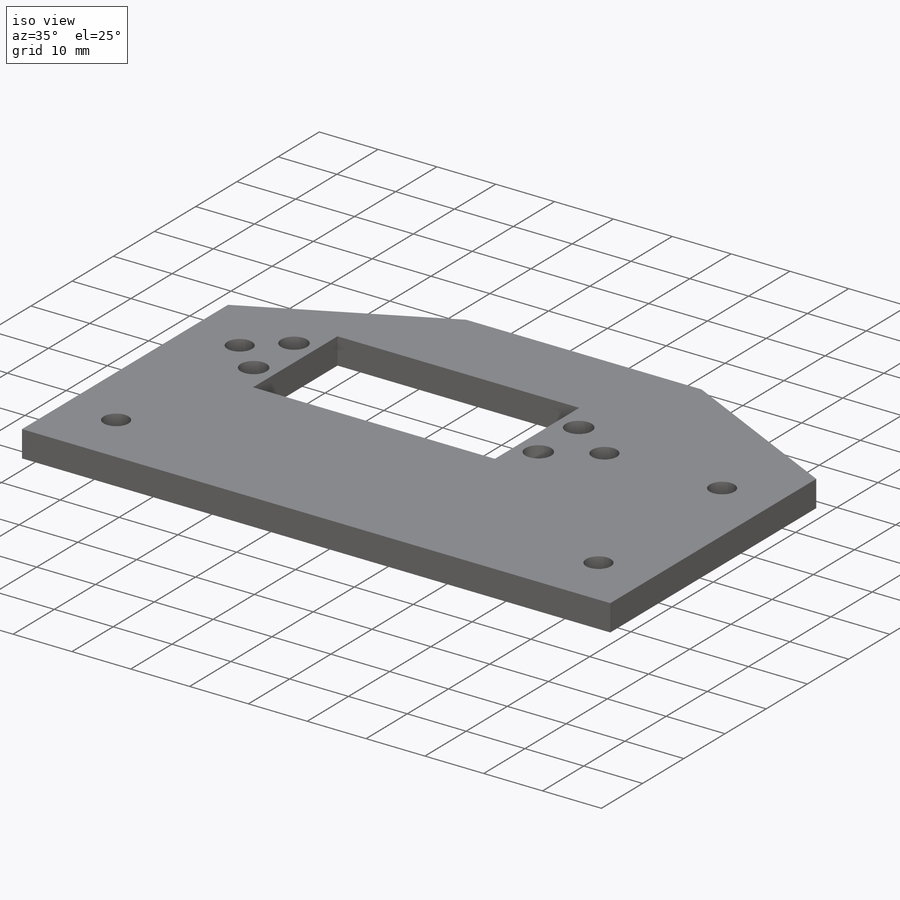
[diagram: iso view]
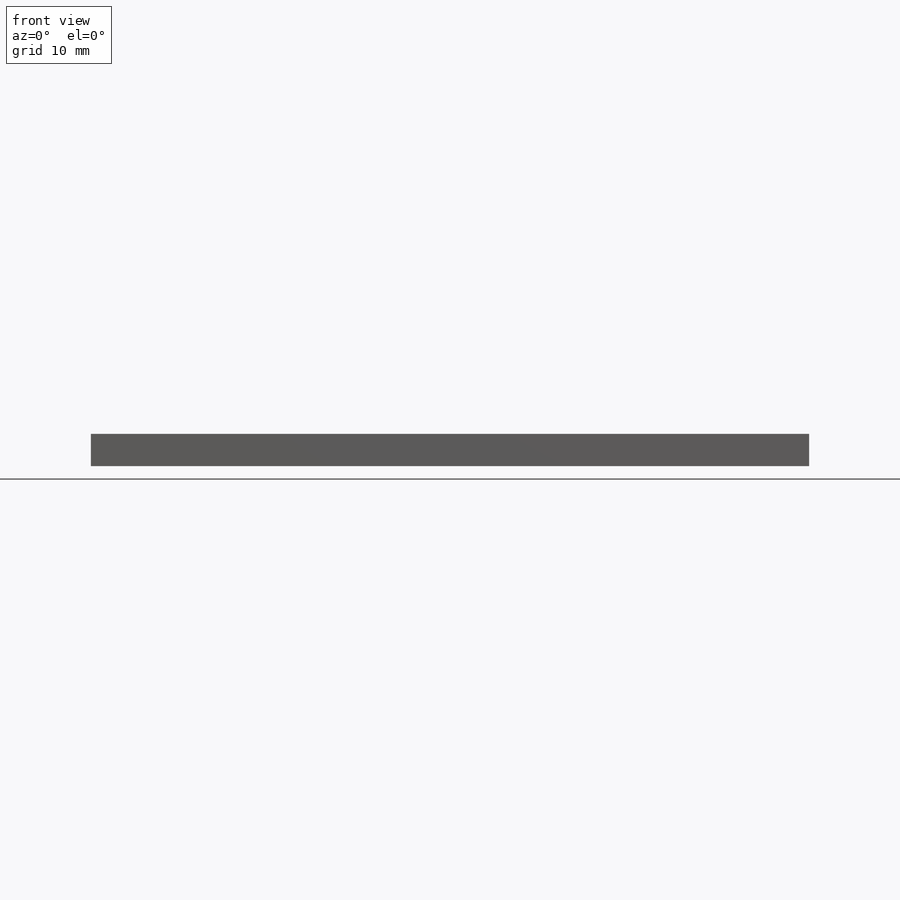
[diagram: front view]
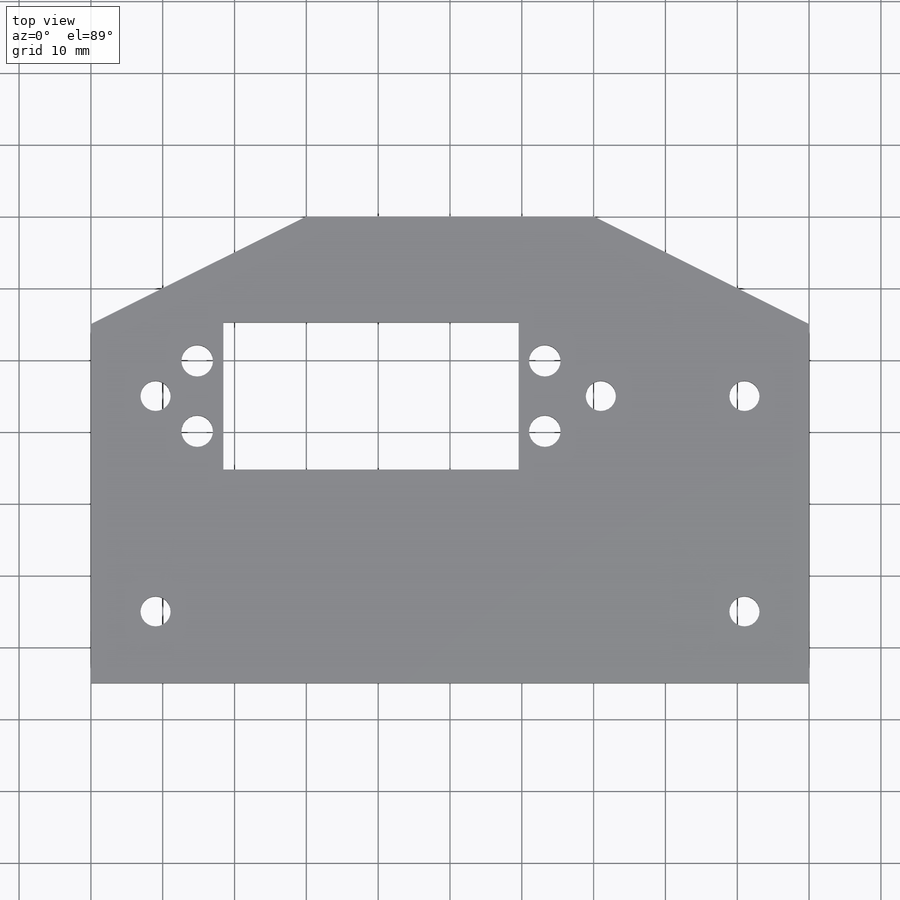
[diagram: top view]
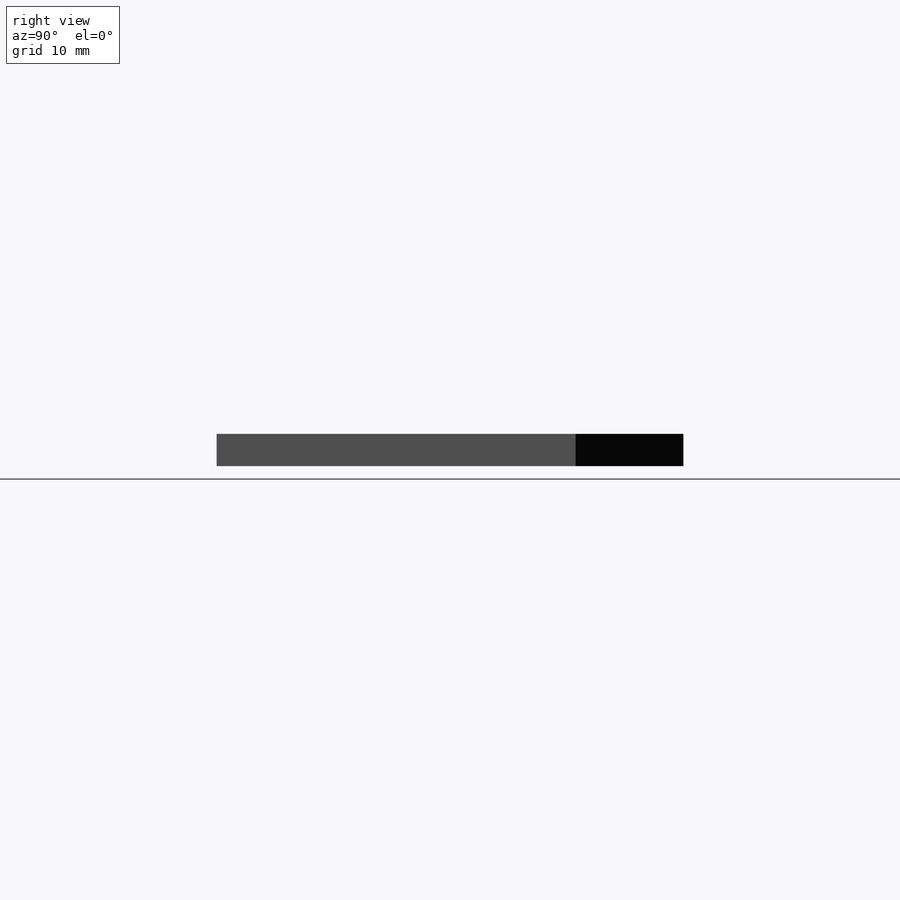
[diagram: right view]
SOLIDWORKS PART (.sldprt)
format: sldprt  version: not decoded by parser v0  size: 168,448 bytes
history: native  units: mm
features: sketch x3, cut_extrude x2, material x1, extrude x1 (+11 scaffold rows collapsed)
feature tree (18):
  scaffold x11  (default folders/planes/origin — collapsed)
  material  "Material <not specified>"
  sketch  "Sketch1"  dims[c1.D3=4.2mm c1.D4=4.2mm c1.D6=~10.749292mm c1.D7=4.2mm c1.D8=4.2mm c1.D14=4.2mm c1.D15=4.2mm c1.D1=~40.96815mm c1.D2=~52.673336mm c2.D1=100.0mm c2.D2=50.0mm c2.D5=82.0mm c2.D6=20.0mm c2.D9=20.0mm c2.D10=5.0mm c2.D11=15.0mm c2.D12=20.0mm c2.D13=20.0mm c3.D10=15.0mm c3.D11=21.0mm c3.D16=10.0mm c3.D17=10.0mm c4.D10=40.0mm c4.D12=40.0mm]
  extrude  "Boss-Extrude1"  Depth=4.5mm
  sketch  "Sketch2"  dims[c1.D1=4.2mm c1.D5=4.4mm c2.D1=20.0mm c2.D2=40.0mm c3.D1=40.0mm c3.D2=40.0mm c4.D1=0.25mm c4.D2=0.25mm c4.D3=0.25mm c4.D4=0.25mm c5.D1=0.25mm c5.D2=0.25mm c5.D3=0.25mm c5.D4=0.25mm]
  cut_extrude  "Cut-Extrude1"  Depth=10mm
  sketch  "Sketch3"  dims[c1.D1=~5.911013mm c1.D2=~47.714462mm c2.D1=6.0mm c2.D2=20.0mm c2.D3=50.0mm]
  cut_extrude  "Cut-Extrude2"  Depth=10mm
decode coverage: 6 of 6 modeling features carry decoded parameters
note: ~ marks probable driven/reference dimensions
note: suppression state not decoded; provenance and decode notes live in map.json
